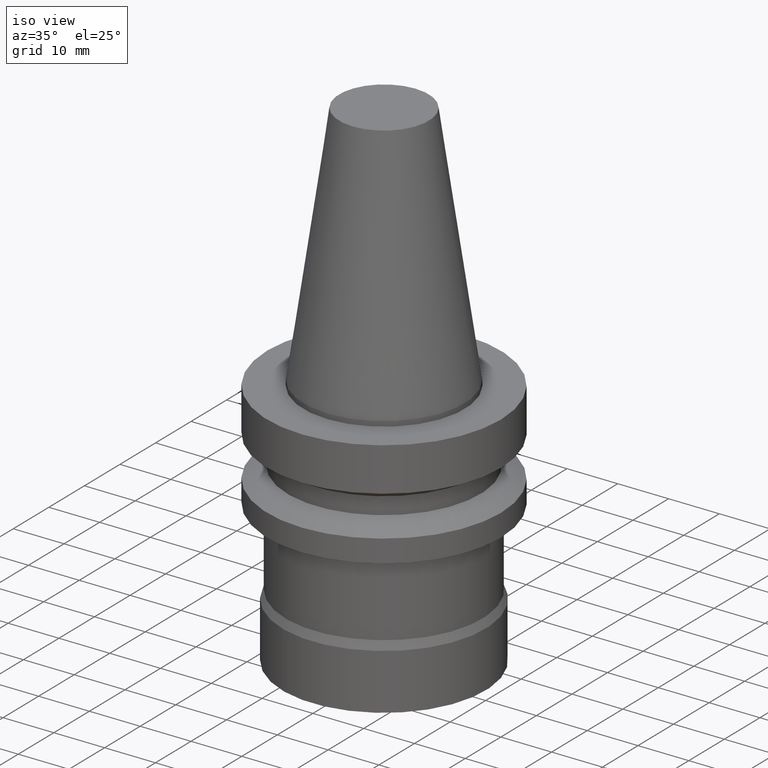
[diagram: clean part render]
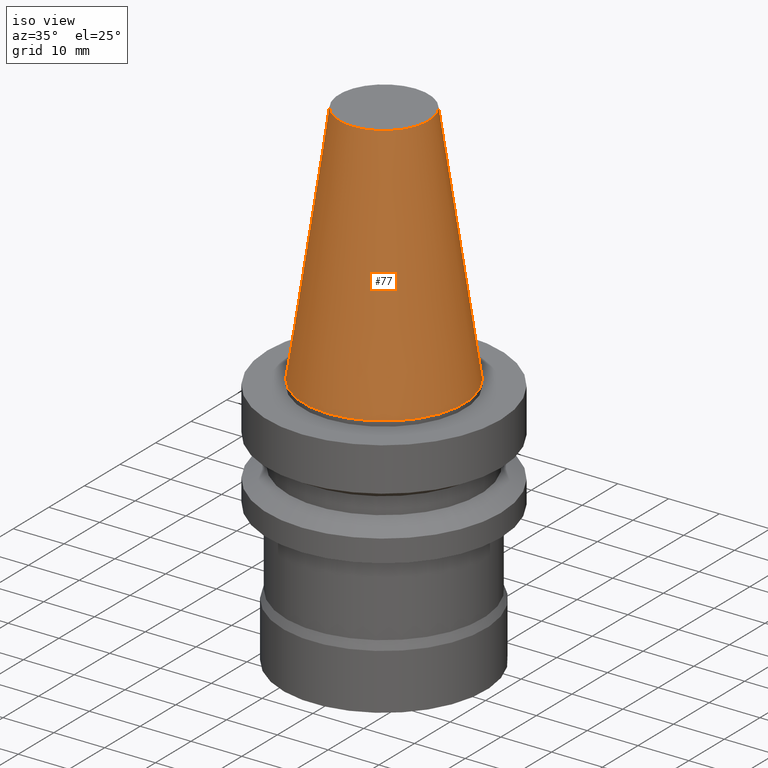
[diagram: same view with one face highlighted and labeled with its STEP entity id]
A machine part, iso view. The second image highlights one B-rep face of the part: STEP entity #77.
In plain terms, the highlighted conical surface has half-angle 8.297 deg.
Its self-contained STEP definition (entity closure, byte-faithful):
#77=ADVANCED_FACE('',(#95,#96),#97,.T.);
#95=FACE_BOUND('',#138,.T.);
#96=FACE_BOUND('',#139,.T.);
#97=CONICAL_SURFACE('',#140,12.3457500009933,0.14481587001362);
#138=EDGE_LOOP('',(#185));
#139=EDGE_LOOP('',(#186));
#140=AXIS2_PLACEMENT_3D('',#187,#188,#189);
#185=ORIENTED_EDGE('',*,*,#252,.F.);
#186=ORIENTED_EDGE('',*,*,#251,.T.);
#187=CARTESIAN_POINT('',(-1.4818226269683E-015,-2.96364525393659E-015,24.2));
#188=DIRECTION('',(6.12323399573677E-017,1.22464679914735E-016,-1.0));
#189=DIRECTION('',(-1.23259516440783E-032,1.0,1.22464679914735E-016));
#251=EDGE_CURVE('',#266,#266,#267,.T.);
#252=EDGE_CURVE('',#268,#268,#269,.T.);
#266=VERTEX_POINT('',#294);
#267=CIRCLE('',#295,8.81650000198667);
#268=VERTEX_POINT('',#296);
#269=CIRCLE('',#297,15.875);
#294=CARTESIAN_POINT('',(-2.96364525393659E-015,8.81650000198666,48.4));
#295=AXIS2_PLACEMENT_3D('',#323,#324,#325);
#296=CARTESIAN_POINT('',(-1.95674482349743E-031,15.875,1.94412679364642E-015));
#297=AXIS2_PLACEMENT_3D('',#326,#327,#328);
#323=CARTESIAN_POINT('',(-2.96364525393659E-015,-5.92729050787319E-015,48.4));
#324=DIRECTION('',(6.12323399573676E-017,1.22464679914735E-016,-1.0));
#325=DIRECTION('',(-1.23259516440783E-032,1.0,1.22464679914735E-016));
#326=CARTESIAN_POINT('',(0.0,0.0,0.0));
#327=DIRECTION('',(6.12323399573677E-017,1.22464679914735E-016,-1.0));
#328=DIRECTION('',(-1.23259516440783E-032,1.0,1.22464679914735E-016));